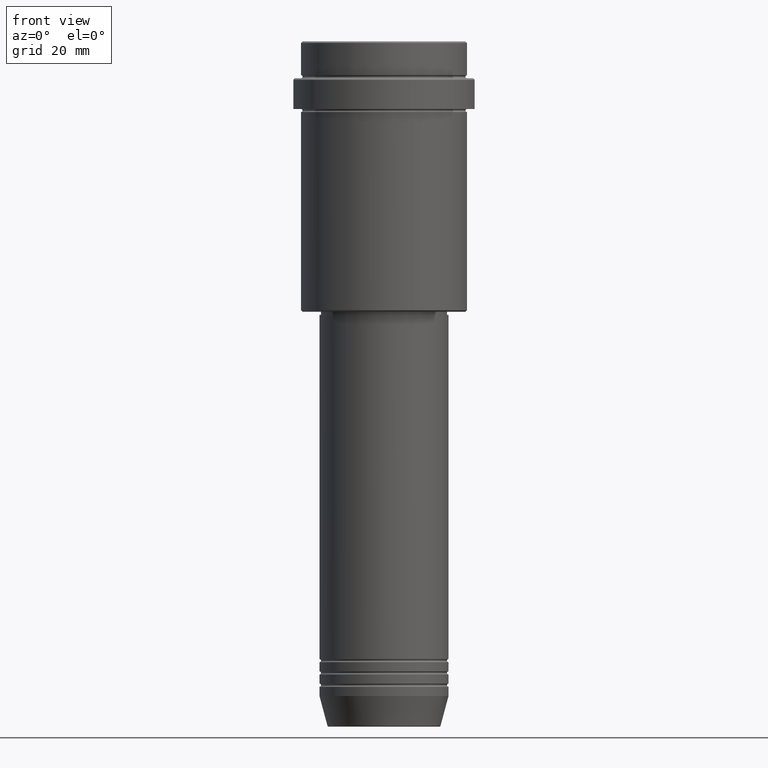
[diagram: clean part render]
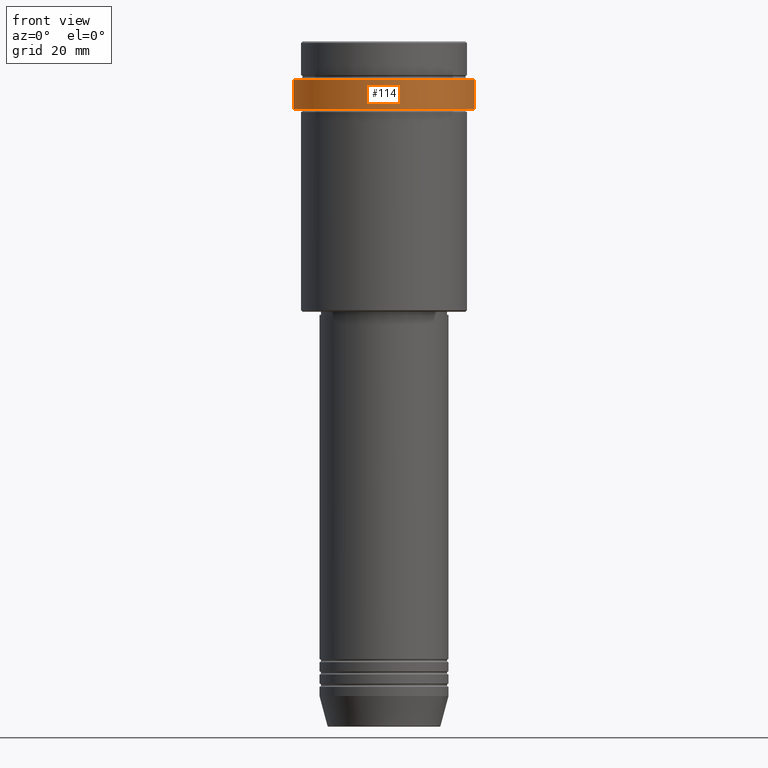
[diagram: same view with one face highlighted and labeled with its STEP entity id]
A machine part, front view. The second image highlights one B-rep face of the part: STEP entity #114.
In plain terms, the highlighted cylindrical surface (partial cylindrical patch) has radius 29.5 mm, axis along (-0, -0, 1).
Its self-contained STEP definition (entity closure, byte-faithful):
#7 = CARTESIAN_POINT ( 'NONE',  ( 29.50000000000000000, 0.000000000000000000, -12.50000000000000355 ) ) ;
#35 = AXIS2_PLACEMENT_3D ( 'NONE', #1054, #171, #813 ) ;
#63 = DIRECTION ( 'NONE',  ( -0.000000000000000000, -0.000000000000000000, 1.000000000000000000 ) ) ;
#114 = ADVANCED_FACE ( 'NONE', ( #715 ), #384, .T. ) ;
#164 = DIRECTION ( 'NONE',  ( 1.000000000000000000, 0.000000000000000000, 0.000000000000000000 ) ) ;
#171 = DIRECTION ( 'NONE',  ( -0.000000000000000000, -0.000000000000000000, 1.000000000000000000 ) ) ;
#181 = VECTOR ( 'NONE', #508, 1000.000000000000000 ) ;
#230 = DIRECTION ( 'NONE',  ( 1.000000000000000000, 0.000000000000000000, 0.000000000000000000 ) ) ;
#351 = ORIENTED_EDGE ( 'NONE', *, *, #746, .T. ) ;
#384 = CYLINDRICAL_SURFACE ( 'NONE', #35, 29.50000000000000000 ) ;
#390 = VERTEX_POINT ( 'NONE', #645 ) ;
#448 = DIRECTION ( 'NONE',  ( -0.000000000000000000, -0.000000000000000000, 1.000000000000000000 ) ) ;
#508 = DIRECTION ( 'NONE',  ( -0.000000000000000000, -0.000000000000000000, 1.000000000000000000 ) ) ;
#533 = EDGE_CURVE ( 'NONE', #390, #591, #666, .T. ) ;
#591 = VERTEX_POINT ( 'NONE', #1122 ) ;
#628 = CARTESIAN_POINT ( 'NONE',  ( 29.50000000000000000, 0.000000000000000000, 0.000000000000000000 ) ) ;
#645 = CARTESIAN_POINT ( 'NONE',  ( -29.49999999999999645, 3.612708057484690815E-15, -22.00000000000000711 ) ) ;
#648 = ORIENTED_EDGE ( 'NONE', *, *, #962, .T. ) ;
#666 = LINE ( 'NONE', #883, #939 ) ;
#715 = FACE_OUTER_BOUND ( 'NONE', #756, .T. ) ;
#729 = AXIS2_PLACEMENT_3D ( 'NONE', #928, #817, #164 ) ;
#746 = EDGE_CURVE ( 'NONE', #390, #1196, #1412, .T. ) ;
#756 = EDGE_LOOP ( 'NONE', ( #1271, #351, #949, #648 ) ) ;
#813 = DIRECTION ( 'NONE',  ( 1.000000000000000000, 0.000000000000000000, 0.000000000000000000 ) ) ;
#817 = DIRECTION ( 'NONE',  ( 0.000000000000000000, 0.000000000000000000, -1.000000000000000000 ) ) ;
#859 = LINE ( 'NONE', #628, #181 ) ;
#865 = CARTESIAN_POINT ( 'NONE',  ( 29.49999999999999645, 0.000000000000000000, -22.00000000000000711 ) ) ;
#883 = CARTESIAN_POINT ( 'NONE',  ( -29.50000000000000000, 3.612708057484691604E-15, 0.000000000000000000 ) ) ;
#928 = CARTESIAN_POINT ( 'NONE',  ( 0.000000000000000000, 0.000000000000000000, -12.50000000000000355 ) ) ;
#939 = VECTOR ( 'NONE', #63, 1000.000000000000000 ) ;
#949 = ORIENTED_EDGE ( 'NONE', *, *, #1079, .T. ) ;
#962 = EDGE_CURVE ( 'NONE', #1260, #591, #1188, .T. ) ;
#988 = CARTESIAN_POINT ( 'NONE',  ( 0.000000000000000000, 0.000000000000000000, -22.00000000000000711 ) ) ;
#1054 = CARTESIAN_POINT ( 'NONE',  ( 0.000000000000000000, 0.000000000000000000, 0.000000000000000000 ) ) ;
#1079 = EDGE_CURVE ( 'NONE', #1196, #1260, #859, .T. ) ;
#1122 = CARTESIAN_POINT ( 'NONE',  ( -29.50000000000000000, 3.612708057484691604E-15, -12.50000000000000355 ) ) ;
#1188 = CIRCLE ( 'NONE', #729, 29.50000000000000000 ) ;
#1196 = VERTEX_POINT ( 'NONE', #865 ) ;
#1260 = VERTEX_POINT ( 'NONE', #7 ) ;
#1271 = ORIENTED_EDGE ( 'NONE', *, *, #533, .F. ) ;
#1393 = AXIS2_PLACEMENT_3D ( 'NONE', #988, #448, #230 ) ;
#1412 = CIRCLE ( 'NONE', #1393, 29.49999999999999645 ) ;